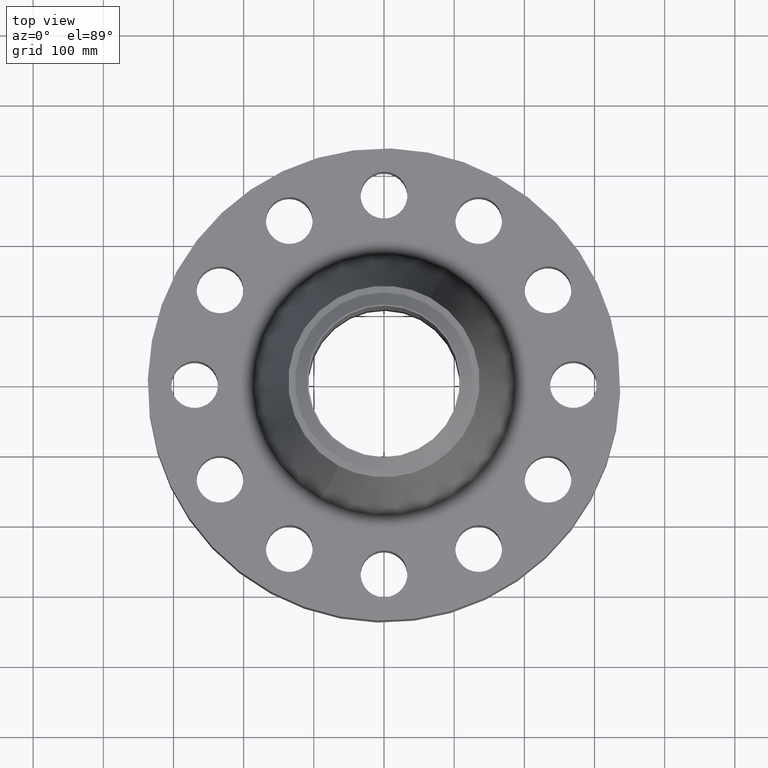
[diagram: clean part render]
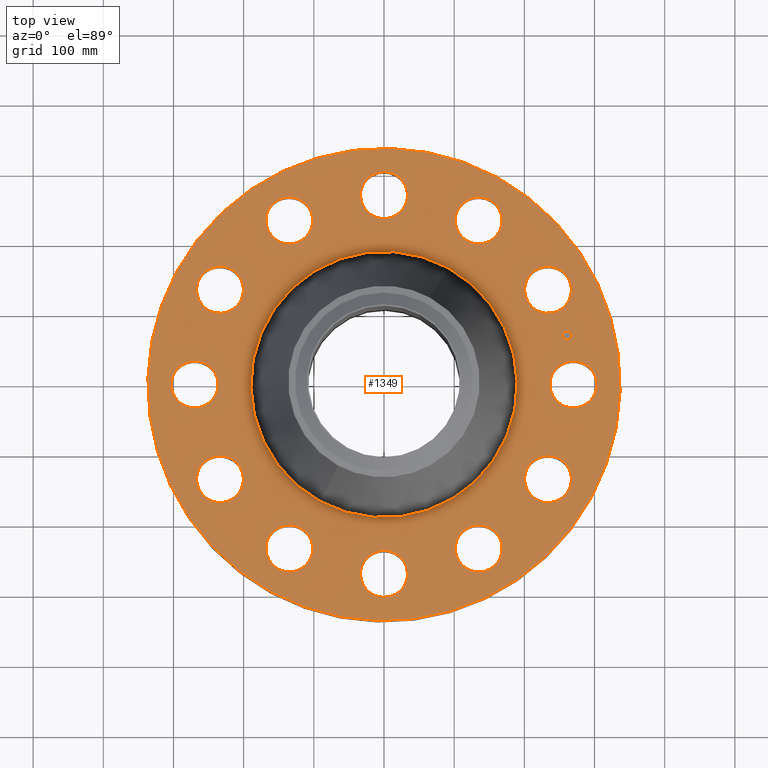
[diagram: same view with one face highlighted and labeled with its STEP entity id]
A machine part, top view. The second image highlights one B-rep face of the part: STEP entity #1349.
In plain terms, the highlighted planar face has unit normal (0, 0, -1).
Its self-contained STEP definition (entity closure, byte-faithful):
#65=AXIS2_PLACEMENT_3D('Circle Axis2P3D',#63,#64,$) ;
#82=AXIS2_PLACEMENT_3D('Circle Axis2P3D',#80,#81,$) ;
#115=AXIS2_PLACEMENT_3D('Circle Axis2P3D',#113,#114,$) ;
#139=AXIS2_PLACEMENT_3D('Circle Axis2P3D',#137,#138,$) ;
#156=AXIS2_PLACEMENT_3D('Circle Axis2P3D',#154,#155,$) ;
#191=AXIS2_PLACEMENT_3D('Circle Axis2P3D',#189,#190,$) ;
#818=AXIS2_PLACEMENT_3D('Circle Axis2P3D',#816,#817,$) ;
#830=AXIS2_PLACEMENT_3D('Circle Axis2P3D',#828,#829,$) ;
#861=AXIS2_PLACEMENT_3D('Circle Axis2P3D',#859,#860,$) ;
#873=AXIS2_PLACEMENT_3D('Circle Axis2P3D',#871,#872,$) ;
#904=AXIS2_PLACEMENT_3D('Circle Axis2P3D',#902,#903,$) ;
#916=AXIS2_PLACEMENT_3D('Circle Axis2P3D',#914,#915,$) ;
#947=AXIS2_PLACEMENT_3D('Circle Axis2P3D',#945,#946,$) ;
#959=AXIS2_PLACEMENT_3D('Circle Axis2P3D',#957,#958,$) ;
#990=AXIS2_PLACEMENT_3D('Circle Axis2P3D',#988,#989,$) ;
#1002=AXIS2_PLACEMENT_3D('Circle Axis2P3D',#1000,#1001,$) ;
#1033=AXIS2_PLACEMENT_3D('Circle Axis2P3D',#1031,#1032,$) ;
#1045=AXIS2_PLACEMENT_3D('Circle Axis2P3D',#1043,#1044,$) ;
#1076=AXIS2_PLACEMENT_3D('Circle Axis2P3D',#1074,#1075,$) ;
#1088=AXIS2_PLACEMENT_3D('Circle Axis2P3D',#1086,#1087,$) ;
#1119=AXIS2_PLACEMENT_3D('Circle Axis2P3D',#1117,#1118,$) ;
#1131=AXIS2_PLACEMENT_3D('Circle Axis2P3D',#1129,#1130,$) ;
#1162=AXIS2_PLACEMENT_3D('Circle Axis2P3D',#1160,#1161,$) ;
#1174=AXIS2_PLACEMENT_3D('Circle Axis2P3D',#1172,#1173,$) ;
#1205=AXIS2_PLACEMENT_3D('Circle Axis2P3D',#1203,#1204,$) ;
#1217=AXIS2_PLACEMENT_3D('Circle Axis2P3D',#1215,#1216,$) ;
#1248=AXIS2_PLACEMENT_3D('Circle Axis2P3D',#1246,#1247,$) ;
#1260=AXIS2_PLACEMENT_3D('Circle Axis2P3D',#1258,#1259,$) ;
#1273=AXIS2_PLACEMENT_3D('Plane Axis2P3D',#1270,#1271,#1272) ;
#1333=AXIS2_PLACEMENT_3D('Circle Axis2P3D',#1331,#1332,$) ;
#1342=AXIS2_PLACEMENT_3D('Circle Axis2P3D',#1340,#1341,$) ;
#46=CARTESIAN_POINT('Vertex',(9.47097893115,0.630444583267,6.50000000003)) ;
#60=CARTESIAN_POINT('Vertex',(11.7790210689,-0.630444583267,6.50000000003)) ;
#63=CARTESIAN_POINT('Axis2P3D Location',(10.625,0.,6.50000000003)) ;
#80=CARTESIAN_POINT('Axis2P3D Location',(10.625,0.,6.50000000003)) ;
#110=CARTESIAN_POINT('Vertex',(-6.35238838653,-11.6279689451,6.50000000003)) ;
#113=CARTESIAN_POINT('Axis2P3D Location',(0.,0.,6.50000000003)) ;
#117=CARTESIAN_POINT('Vertex',(6.35238838653,11.6279689451,6.50000000003)) ;
#137=CARTESIAN_POINT('Axis2P3D Location',(0.,0.,6.50000000003)) ;
#154=CARTESIAN_POINT('Axis2P3D Location',(0.,0.,6.50000000003)) ;
#158=CARTESIAN_POINT('Vertex',(3.582113965,6.5570156307,6.50000000003)) ;
#160=CARTESIAN_POINT('Vertex',(-3.582113965,-6.5570156307,6.50000000003)) ;
#189=CARTESIAN_POINT('Axis2P3D Location',(0.,0.,6.50000000003)) ;
#806=CARTESIAN_POINT('Vertex',(-8.51733064472,4.18950844079,6.50000000003)) ;
#813=CARTESIAN_POINT('Vertex',(-9.88570918577,6.43549155925,6.50000000003)) ;
#816=CARTESIAN_POINT('Axis2P3D Location',(-9.20151991525,5.31250000002,6.50000000003)) ;
#828=CARTESIAN_POINT('Axis2P3D Location',(-9.20151991525,5.31250000002,6.50000000003)) ;
#849=CARTESIAN_POINT('Vertex',(5.28147049036,-7.88688606145,6.50000000003)) ;
#856=CARTESIAN_POINT('Vertex',(5.34352950968,-10.516153769,6.50000000003)) ;
#859=CARTESIAN_POINT('Axis2P3D Location',(5.31250000002,-9.20151991525,6.50000000003)) ;
#871=CARTESIAN_POINT('Axis2P3D Location',(5.31250000002,-9.20151991525,6.50000000003)) ;
#892=CARTESIAN_POINT('Vertex',(-5.28147049036,7.88688606145,6.50000000003)) ;
#899=CARTESIAN_POINT('Vertex',(-5.34352950968,10.516153769,6.50000000003)) ;
#902=CARTESIAN_POINT('Axis2P3D Location',(-5.31250000002,9.20151991525,6.50000000003)) ;
#914=CARTESIAN_POINT('Axis2P3D Location',(-5.31250000002,9.20151991525,6.50000000003)) ;
#935=CARTESIAN_POINT('Vertex',(0.630444583267,-9.47097893115,6.50000000003)) ;
#942=CARTESIAN_POINT('Vertex',(-0.630444583267,-11.7790210689,6.50000000003)) ;
#945=CARTESIAN_POINT('Axis2P3D Location',(-1.58733626436E-015,-10.625,6.50000000003)) ;
#957=CARTESIAN_POINT('Axis2P3D Location',(-1.58733626436E-015,-10.625,6.50000000003)) ;
#978=CARTESIAN_POINT('Vertex',(-0.630444583267,9.47097893115,6.50000000003)) ;
#985=CARTESIAN_POINT('Vertex',(0.630444583267,11.7790210689,6.50000000003)) ;
#988=CARTESIAN_POINT('Axis2P3D Location',(-1.95178083615E-015,10.625,6.50000000003)) ;
#1000=CARTESIAN_POINT('Axis2P3D Location',(-1.95178083615E-015,10.625,6.50000000003)) ;
#1021=CARTESIAN_POINT('Vertex',(-4.18950844079,-8.51733064472,6.50000000003)) ;
#1028=CARTESIAN_POINT('Vertex',(-6.43549155925,-9.88570918577,6.50000000003)) ;
#1031=CARTESIAN_POINT('Axis2P3D Location',(-5.31250000002,-9.20151991525,6.50000000003)) ;
#1043=CARTESIAN_POINT('Axis2P3D Location',(-5.31250000002,-9.20151991525,6.50000000003)) ;
#1064=CARTESIAN_POINT('Vertex',(4.18950844079,8.51733064472,6.50000000003)) ;
#1071=CARTESIAN_POINT('Vertex',(6.43549155925,9.88570918577,6.50000000003)) ;
#1074=CARTESIAN_POINT('Axis2P3D Location',(5.31250000002,9.20151991525,6.50000000003)) ;
#1086=CARTESIAN_POINT('Axis2P3D Location',(5.31250000002,9.20151991525,6.50000000003)) ;
#1107=CARTESIAN_POINT('Vertex',(-7.88688606145,-5.28147049036,6.50000000003)) ;
#1114=CARTESIAN_POINT('Vertex',(-10.516153769,-5.34352950968,6.50000000003)) ;
#1117=CARTESIAN_POINT('Axis2P3D Location',(-9.20151991525,-5.31250000002,6.50000000003)) ;
#1129=CARTESIAN_POINT('Axis2P3D Location',(-9.20151991525,-5.31250000002,6.50000000003)) ;
#1150=CARTESIAN_POINT('Vertex',(7.88688606145,5.28147049036,6.50000000003)) ;
#1157=CARTESIAN_POINT('Vertex',(10.516153769,5.34352950968,6.50000000003)) ;
#1160=CARTESIAN_POINT('Axis2P3D Location',(9.20151991525,5.31250000002,6.50000000003)) ;
#1172=CARTESIAN_POINT('Axis2P3D Location',(9.20151991525,5.31250000002,6.50000000003)) ;
#1193=CARTESIAN_POINT('Vertex',(-9.47097893115,-0.630444583267,6.50000000003)) ;
#1200=CARTESIAN_POINT('Vertex',(-11.7790210689,0.630444583267,6.50000000003)) ;
#1203=CARTESIAN_POINT('Axis2P3D Location',(-10.625,-1.3011872241E-015,6.50000000003)) ;
#1215=CARTESIAN_POINT('Axis2P3D Location',(-10.625,-1.3011872241E-015,6.50000000003)) ;
#1236=CARTESIAN_POINT('Vertex',(8.51733064472,-4.18950844079,6.50000000003)) ;
#1243=CARTESIAN_POINT('Vertex',(9.88570918577,-6.43549155925,6.50000000003)) ;
#1246=CARTESIAN_POINT('Axis2P3D Location',(9.20151991525,-5.31250000002,6.50000000003)) ;
#1258=CARTESIAN_POINT('Axis2P3D Location',(9.20151991525,-5.31250000002,6.50000000003)) ;
#1270=CARTESIAN_POINT('Axis2P3D Location',(0.,13.2500000001,6.50000000003)) ;
#1331=CARTESIAN_POINT('Axis2P3D Location',(10.2629619044,2.74995235423,6.50000000003)) ;
#1335=CARTESIAN_POINT('Vertex',(10.1989041907,2.98901899623,6.50000000003)) ;
#1337=CARTESIAN_POINT('Vertex',(10.327019618,2.51088571222,6.50000000003)) ;
#1340=CARTESIAN_POINT('Axis2P3D Location',(10.2629619044,2.74995235423,6.50000000003)) ;
#64=DIRECTION('Axis2P3D Direction',(0.,-0.,-0.0393700787402)) ;
#81=DIRECTION('Axis2P3D Direction',(0.,-0.,-0.0393700787402)) ;
#114=DIRECTION('Axis2P3D Direction',(0.,0.,-0.0393700787402)) ;
#138=DIRECTION('Axis2P3D Direction',(0.,0.,-0.0393700787402)) ;
#155=DIRECTION('Axis2P3D Direction',(0.,0.,-0.0393700787402)) ;
#190=DIRECTION('Axis2P3D Direction',(0.,0.,-0.0393700787402)) ;
#817=DIRECTION('Axis2P3D Direction',(0.,0.,-0.0393700787402)) ;
#829=DIRECTION('Axis2P3D Direction',(0.,0.,-0.0393700787402)) ;
#860=DIRECTION('Axis2P3D Direction',(0.,-0.,-0.0393700787402)) ;
#872=DIRECTION('Axis2P3D Direction',(0.,-0.,-0.0393700787402)) ;
#903=DIRECTION('Axis2P3D Direction',(0.,0.,-0.0393700787402)) ;
#915=DIRECTION('Axis2P3D Direction',(0.,0.,-0.0393700787402)) ;
#946=DIRECTION('Axis2P3D Direction',(0.,-0.,-0.0393700787402)) ;
#958=DIRECTION('Axis2P3D Direction',(0.,-0.,-0.0393700787402)) ;
#989=DIRECTION('Axis2P3D Direction',(0.,0.,-0.0393700787402)) ;
#1001=DIRECTION('Axis2P3D Direction',(0.,0.,-0.0393700787402)) ;
#1032=DIRECTION('Axis2P3D Direction',(-0.,0.,-0.0393700787402)) ;
#1044=DIRECTION('Axis2P3D Direction',(-0.,0.,-0.0393700787402)) ;
#1075=DIRECTION('Axis2P3D Direction',(0.,0.,-0.0393700787402)) ;
#1087=DIRECTION('Axis2P3D Direction',(0.,0.,-0.0393700787402)) ;
#1118=DIRECTION('Axis2P3D Direction',(-0.,0.,-0.0393700787402)) ;
#1130=DIRECTION('Axis2P3D Direction',(-0.,0.,-0.0393700787402)) ;
#1161=DIRECTION('Axis2P3D Direction',(0.,0.,-0.0393700787402)) ;
#1173=DIRECTION('Axis2P3D Direction',(0.,0.,-0.0393700787402)) ;
#1204=DIRECTION('Axis2P3D Direction',(-0.,0.,-0.0393700787402)) ;
#1216=DIRECTION('Axis2P3D Direction',(-0.,0.,-0.0393700787402)) ;
#1247=DIRECTION('Axis2P3D Direction',(0.,-0.,-0.0393700787402)) ;
#1259=DIRECTION('Axis2P3D Direction',(0.,-0.,-0.0393700787402)) ;
#1271=DIRECTION('Axis2P3D Direction',(0.,0.,-0.0393700787402)) ;
#1272=DIRECTION('Axis2P3D XDirection',(0.0393700787402,0.,0.)) ;
#1332=DIRECTION('Axis2P3D Direction',(0.,0.,-0.0393700787402)) ;
#1341=DIRECTION('Axis2P3D Direction',(0.,0.,-0.0393700787402)) ;
#1276=ORIENTED_EDGE('',*,*,#141,.F.) ;
#1277=ORIENTED_EDGE('',*,*,#119,.F.) ;
#1280=ORIENTED_EDGE('',*,*,#67,.T.) ;
#1281=ORIENTED_EDGE('',*,*,#84,.T.) ;
#1284=ORIENTED_EDGE('',*,*,#193,.T.) ;
#1285=ORIENTED_EDGE('',*,*,#162,.T.) ;
#1288=ORIENTED_EDGE('',*,*,#1262,.T.) ;
#1289=ORIENTED_EDGE('',*,*,#1250,.T.) ;
#1292=ORIENTED_EDGE('',*,*,#875,.T.) ;
#1293=ORIENTED_EDGE('',*,*,#863,.T.) ;
#1296=ORIENTED_EDGE('',*,*,#961,.T.) ;
#1297=ORIENTED_EDGE('',*,*,#949,.T.) ;
#1300=ORIENTED_EDGE('',*,*,#1047,.T.) ;
#1301=ORIENTED_EDGE('',*,*,#1035,.T.) ;
#1304=ORIENTED_EDGE('',*,*,#1133,.T.) ;
#1305=ORIENTED_EDGE('',*,*,#1121,.T.) ;
#1308=ORIENTED_EDGE('',*,*,#1219,.T.) ;
#1309=ORIENTED_EDGE('',*,*,#1207,.T.) ;
#1312=ORIENTED_EDGE('',*,*,#832,.T.) ;
#1313=ORIENTED_EDGE('',*,*,#820,.T.) ;
#1316=ORIENTED_EDGE('',*,*,#918,.T.) ;
#1317=ORIENTED_EDGE('',*,*,#906,.T.) ;
#1320=ORIENTED_EDGE('',*,*,#1004,.T.) ;
#1321=ORIENTED_EDGE('',*,*,#992,.T.) ;
#1324=ORIENTED_EDGE('',*,*,#1090,.T.) ;
#1325=ORIENTED_EDGE('',*,*,#1078,.T.) ;
#1328=ORIENTED_EDGE('',*,*,#1176,.T.) ;
#1329=ORIENTED_EDGE('',*,*,#1164,.T.) ;
#1346=ORIENTED_EDGE('',*,*,#1339,.T.) ;
#1347=ORIENTED_EDGE('',*,*,#1344,.T.) ;
#1282=FACE_BOUND('',#1279,.T.) ;
#1286=FACE_BOUND('',#1283,.T.) ;
#1290=FACE_BOUND('',#1287,.T.) ;
#1294=FACE_BOUND('',#1291,.T.) ;
#1298=FACE_BOUND('',#1295,.T.) ;
#1302=FACE_BOUND('',#1299,.T.) ;
#1306=FACE_BOUND('',#1303,.T.) ;
#1310=FACE_BOUND('',#1307,.T.) ;
#1314=FACE_BOUND('',#1311,.T.) ;
#1318=FACE_BOUND('',#1315,.T.) ;
#1322=FACE_BOUND('',#1319,.T.) ;
#1326=FACE_BOUND('',#1323,.T.) ;
#1330=FACE_BOUND('',#1327,.T.) ;
#1348=FACE_BOUND('',#1345,.T.) ;
#1349=ADVANCED_FACE('PartBody',(#1278,#1282,#1286,#1290,#1294,#1298,#1302,#1306,#1310,#1314,#1318,#1322,#1326,#1330,#1348),#1274,.F.) ;
#66=CIRCLE('generated circle',#65,1.31500000001) ;
#83=CIRCLE('generated circle',#82,1.31500000001) ;
#116=CIRCLE('generated circle',#115,13.2500000001) ;
#140=CIRCLE('generated circle',#139,13.2500000001) ;
#157=CIRCLE('generated circle',#156,7.47167949255) ;
#192=CIRCLE('generated circle',#191,7.47167949255) ;
#819=CIRCLE('generated circle',#818,1.31500000001) ;
#831=CIRCLE('generated circle',#830,1.31500000001) ;
#862=CIRCLE('generated circle',#861,1.31500000001) ;
#874=CIRCLE('generated circle',#873,1.31500000001) ;
#905=CIRCLE('generated circle',#904,1.31500000001) ;
#917=CIRCLE('generated circle',#916,1.31500000001) ;
#948=CIRCLE('generated circle',#947,1.31500000001) ;
#960=CIRCLE('generated circle',#959,1.31500000001) ;
#991=CIRCLE('generated circle',#990,1.31500000001) ;
#1003=CIRCLE('generated circle',#1002,1.31500000001) ;
#1034=CIRCLE('generated circle',#1033,1.31500000001) ;
#1046=CIRCLE('generated circle',#1045,1.31500000001) ;
#1077=CIRCLE('generated circle',#1076,1.31500000001) ;
#1089=CIRCLE('generated circle',#1088,1.31500000001) ;
#1120=CIRCLE('generated circle',#1119,1.31500000001) ;
#1132=CIRCLE('generated circle',#1131,1.31500000001) ;
#1163=CIRCLE('generated circle',#1162,1.31500000001) ;
#1175=CIRCLE('generated circle',#1174,1.31500000001) ;
#1206=CIRCLE('generated circle',#1205,1.31500000001) ;
#1218=CIRCLE('generated circle',#1217,1.31500000001) ;
#1249=CIRCLE('generated circle',#1248,1.31500000001) ;
#1261=CIRCLE('generated circle',#1260,1.31500000001) ;
#1334=CIRCLE('generated circle',#1333,0.247500000001) ;
#1343=CIRCLE('generated circle',#1342,0.247500000001) ;
#67=EDGE_CURVE('',#47,#61,#66,.T.) ;
#84=EDGE_CURVE('',#61,#47,#83,.T.) ;
#119=EDGE_CURVE('',#111,#118,#116,.T.) ;
#141=EDGE_CURVE('',#118,#111,#140,.T.) ;
#162=EDGE_CURVE('',#159,#161,#157,.T.) ;
#193=EDGE_CURVE('',#161,#159,#192,.T.) ;
#820=EDGE_CURVE('',#807,#814,#819,.T.) ;
#832=EDGE_CURVE('',#814,#807,#831,.T.) ;
#863=EDGE_CURVE('',#850,#857,#862,.T.) ;
#875=EDGE_CURVE('',#857,#850,#874,.T.) ;
#906=EDGE_CURVE('',#893,#900,#905,.T.) ;
#918=EDGE_CURVE('',#900,#893,#917,.T.) ;
#949=EDGE_CURVE('',#936,#943,#948,.T.) ;
#961=EDGE_CURVE('',#943,#936,#960,.T.) ;
#992=EDGE_CURVE('',#979,#986,#991,.T.) ;
#1004=EDGE_CURVE('',#986,#979,#1003,.T.) ;
#1035=EDGE_CURVE('',#1022,#1029,#1034,.T.) ;
#1047=EDGE_CURVE('',#1029,#1022,#1046,.T.) ;
#1078=EDGE_CURVE('',#1065,#1072,#1077,.T.) ;
#1090=EDGE_CURVE('',#1072,#1065,#1089,.T.) ;
#1121=EDGE_CURVE('',#1108,#1115,#1120,.T.) ;
#1133=EDGE_CURVE('',#1115,#1108,#1132,.T.) ;
#1164=EDGE_CURVE('',#1151,#1158,#1163,.T.) ;
#1176=EDGE_CURVE('',#1158,#1151,#1175,.T.) ;
#1207=EDGE_CURVE('',#1194,#1201,#1206,.T.) ;
#1219=EDGE_CURVE('',#1201,#1194,#1218,.T.) ;
#1250=EDGE_CURVE('',#1237,#1244,#1249,.T.) ;
#1262=EDGE_CURVE('',#1244,#1237,#1261,.T.) ;
#1339=EDGE_CURVE('',#1336,#1338,#1334,.T.) ;
#1344=EDGE_CURVE('',#1338,#1336,#1343,.T.) ;
#1275=EDGE_LOOP('',(#1276,#1277)) ;
#1279=EDGE_LOOP('',(#1280,#1281)) ;
#1283=EDGE_LOOP('',(#1284,#1285)) ;
#1287=EDGE_LOOP('',(#1288,#1289)) ;
#1291=EDGE_LOOP('',(#1292,#1293)) ;
#1295=EDGE_LOOP('',(#1296,#1297)) ;
#1299=EDGE_LOOP('',(#1300,#1301)) ;
#1303=EDGE_LOOP('',(#1304,#1305)) ;
#1307=EDGE_LOOP('',(#1308,#1309)) ;
#1311=EDGE_LOOP('',(#1312,#1313)) ;
#1315=EDGE_LOOP('',(#1316,#1317)) ;
#1319=EDGE_LOOP('',(#1320,#1321)) ;
#1323=EDGE_LOOP('',(#1324,#1325)) ;
#1327=EDGE_LOOP('',(#1328,#1329)) ;
#1345=EDGE_LOOP('',(#1346,#1347)) ;
#1278=FACE_OUTER_BOUND('',#1275,.T.) ;
#1274=PLANE('',#1273) ;
#47=VERTEX_POINT('',#46) ;
#61=VERTEX_POINT('',#60) ;
#111=VERTEX_POINT('',#110) ;
#118=VERTEX_POINT('',#117) ;
#159=VERTEX_POINT('',#158) ;
#161=VERTEX_POINT('',#160) ;
#807=VERTEX_POINT('',#806) ;
#814=VERTEX_POINT('',#813) ;
#850=VERTEX_POINT('',#849) ;
#857=VERTEX_POINT('',#856) ;
#893=VERTEX_POINT('',#892) ;
#900=VERTEX_POINT('',#899) ;
#936=VERTEX_POINT('',#935) ;
#943=VERTEX_POINT('',#942) ;
#979=VERTEX_POINT('',#978) ;
#986=VERTEX_POINT('',#985) ;
#1022=VERTEX_POINT('',#1021) ;
#1029=VERTEX_POINT('',#1028) ;
#1065=VERTEX_POINT('',#1064) ;
#1072=VERTEX_POINT('',#1071) ;
#1108=VERTEX_POINT('',#1107) ;
#1115=VERTEX_POINT('',#1114) ;
#1151=VERTEX_POINT('',#1150) ;
#1158=VERTEX_POINT('',#1157) ;
#1194=VERTEX_POINT('',#1193) ;
#1201=VERTEX_POINT('',#1200) ;
#1237=VERTEX_POINT('',#1236) ;
#1244=VERTEX_POINT('',#1243) ;
#1336=VERTEX_POINT('',#1335) ;
#1338=VERTEX_POINT('',#1337) ;